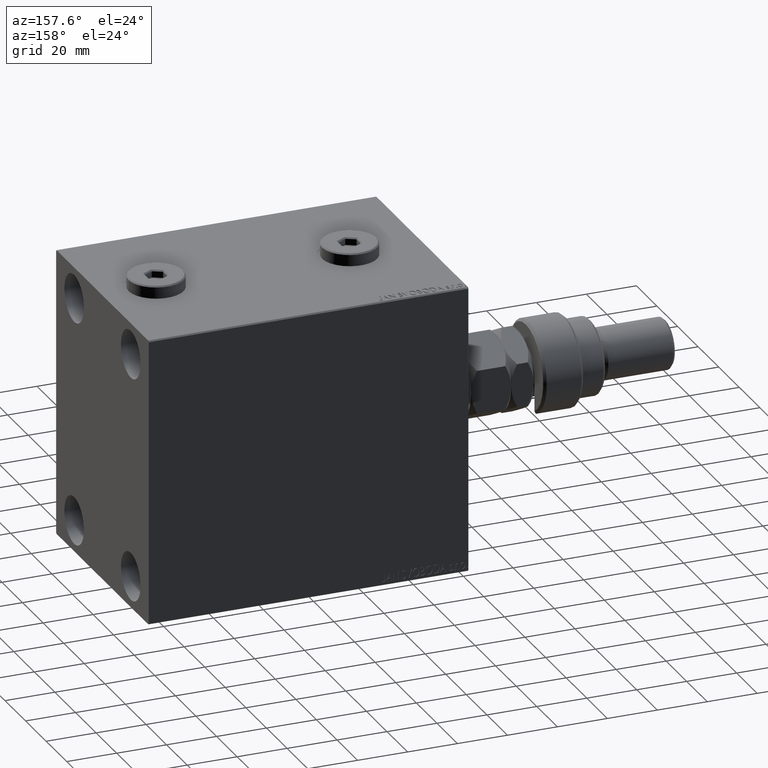
[diagram: clean part render]
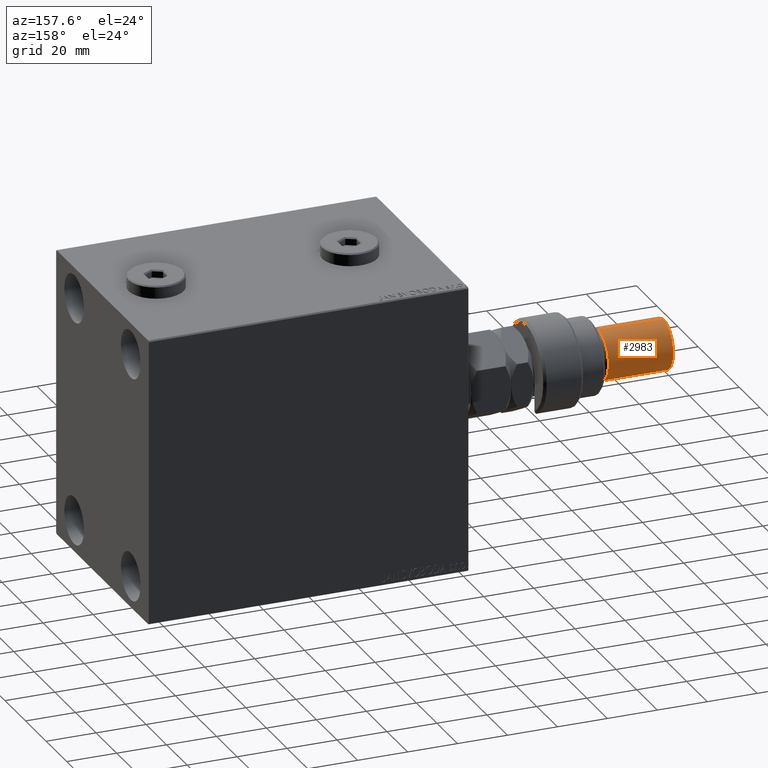
[diagram: same view with one face highlighted and labeled with its STEP entity id]
A machine part, auxiliary view. The second image highlights one B-rep face of the part: STEP entity #2983.
In plain terms, the highlighted cylindrical surface (edge-blend (fillet) strip) has radius 10 mm, axis along (1, -0, -0).
Its self-contained STEP definition (entity closure, byte-faithful):
#885 = VERTEX_POINT ( 'NONE', #29615 ) ;
#1716 = LINE ( 'NONE', #28494, #37208 ) ;
#2619 = EDGE_CURVE ( 'NONE', #8758, #885, #1716, .T. ) ;
#2983 = ADVANCED_FACE ( 'NONE', ( #3344 ), #14307, .T. ) ;
#3344 = FACE_OUTER_BOUND ( 'NONE', #8636, .T. ) ;
#7680 = DIRECTION ( 'NONE',  ( -0.000000000000000000, -0.000000000000000000, -1.000000000000000000 ) ) ;
#8636 = EDGE_LOOP ( 'NONE', ( #26444, #16486, #25789, #17699 ) ) ;
#8758 = VERTEX_POINT ( 'NONE', #31650 ) ;
#9024 = VERTEX_POINT ( 'NONE', #12090 ) ;
#9994 = CARTESIAN_POINT ( 'NONE',  ( 0.000000000000000000, 0.000000000000000000, 54.99999999999998579 ) ) ;
#10699 = CARTESIAN_POINT ( 'NONE',  ( 0.000000000000000000, 0.000000000000000000, 29.00000000000000711 ) ) ;
#12090 = CARTESIAN_POINT ( 'NONE',  ( -10.00000000000000000, 0.000000000000000000, 54.99999999999998579 ) ) ;
#13543 = CARTESIAN_POINT ( 'NONE',  ( -10.00000000000000000, 0.000000000000000000, 56.00000000000000711 ) ) ;
#14307 = CYLINDRICAL_SURFACE ( 'NONE', #22435, 10.00000000000000000 ) ;
#14481 = CARTESIAN_POINT ( 'NONE',  ( -10.00000000000000000, 0.000000000000000000, 29.00000000000000711 ) ) ;
#15329 = DIRECTION ( 'NONE',  ( -0.000000000000000000, -0.000000000000000000, 1.000000000000000000 ) ) ;
#16486 = ORIENTED_EDGE ( 'NONE', *, *, #2619, .T. ) ;
#17186 = LINE ( 'NONE', #13543, #44706 ) ;
#17699 = ORIENTED_EDGE ( 'NONE', *, *, #25868, .F. ) ;
#21132 = CARTESIAN_POINT ( 'NONE',  ( 0.000000000000000000, 0.000000000000000000, 56.00000000000000711 ) ) ;
#21849 = DIRECTION ( 'NONE',  ( -0.000000000000000000, -0.000000000000000000, -1.000000000000000000 ) ) ;
#22435 = AXIS2_PLACEMENT_3D ( 'NONE', #21132, #21849, #47193 ) ;
#24124 = DIRECTION ( 'NONE',  ( 0.000000000000000000, 0.000000000000000000, -1.000000000000000000 ) ) ;
#25789 = ORIENTED_EDGE ( 'NONE', *, *, #44423, .T. ) ;
#25868 = EDGE_CURVE ( 'NONE', #9024, #41554, #17186, .T. ) ;
#26444 = ORIENTED_EDGE ( 'NONE', *, *, #38054, .T. ) ;
#27530 = DIRECTION ( 'NONE',  ( -0.000000000000000000, -0.000000000000000000, -1.000000000000000000 ) ) ;
#28015 = DIRECTION ( 'NONE',  ( 1.000000000000000000, 0.000000000000000000, 0.000000000000000000 ) ) ;
#28365 = CIRCLE ( 'NONE', #33786, 10.00000000000000000 ) ;
#28494 = CARTESIAN_POINT ( 'NONE',  ( 10.00000000000000000, 1.224646799147353256E-15, 56.00000000000000711 ) ) ;
#29615 = CARTESIAN_POINT ( 'NONE',  ( 10.00000000000000000, 1.224646799147353256E-15, 29.00000000000000711 ) ) ;
#31650 = CARTESIAN_POINT ( 'NONE',  ( 10.00000000000000000, 1.224646799147353256E-15, 54.99999999999998579 ) ) ;
#33098 = DIRECTION ( 'NONE',  ( 1.000000000000000000, 0.000000000000000000, 0.000000000000000000 ) ) ;
#33786 = AXIS2_PLACEMENT_3D ( 'NONE', #10699, #15329, #33098 ) ;
#37208 = VECTOR ( 'NONE', #27530, 1000.000000000000000 ) ;
#38054 = EDGE_CURVE ( 'NONE', #9024, #8758, #42166, .T. ) ;
#38274 = AXIS2_PLACEMENT_3D ( 'NONE', #9994, #24124, #28015 ) ;
#41554 = VERTEX_POINT ( 'NONE', #14481 ) ;
#42166 = CIRCLE ( 'NONE', #38274, 10.00000000000000000 ) ;
#44423 = EDGE_CURVE ( 'NONE', #885, #41554, #28365, .T. ) ;
#44706 = VECTOR ( 'NONE', #7680, 1000.000000000000000 ) ;
#47193 = DIRECTION ( 'NONE',  ( -1.000000000000000000, 0.000000000000000000, 0.000000000000000000 ) ) ;